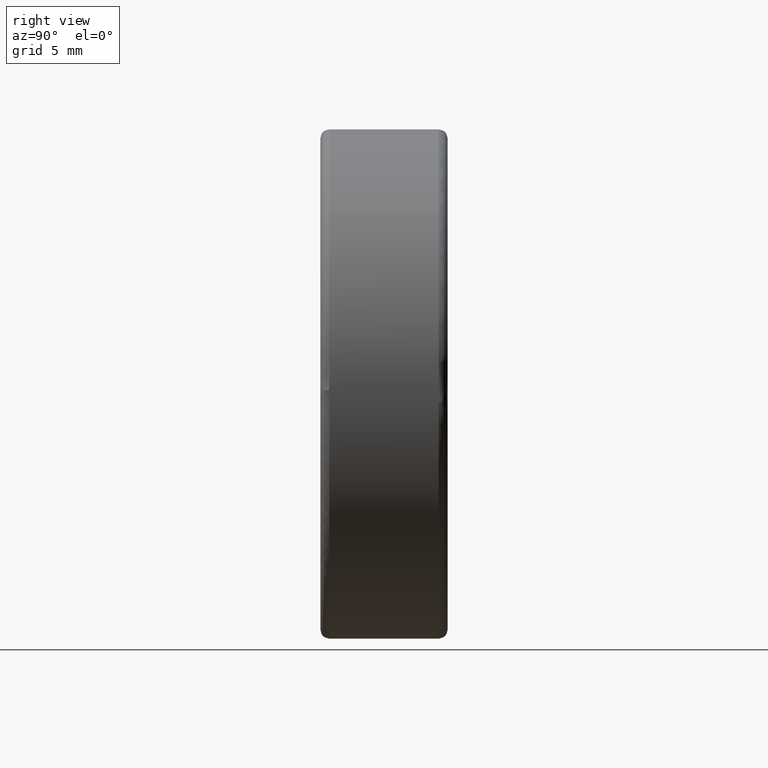
[diagram: clean part render]
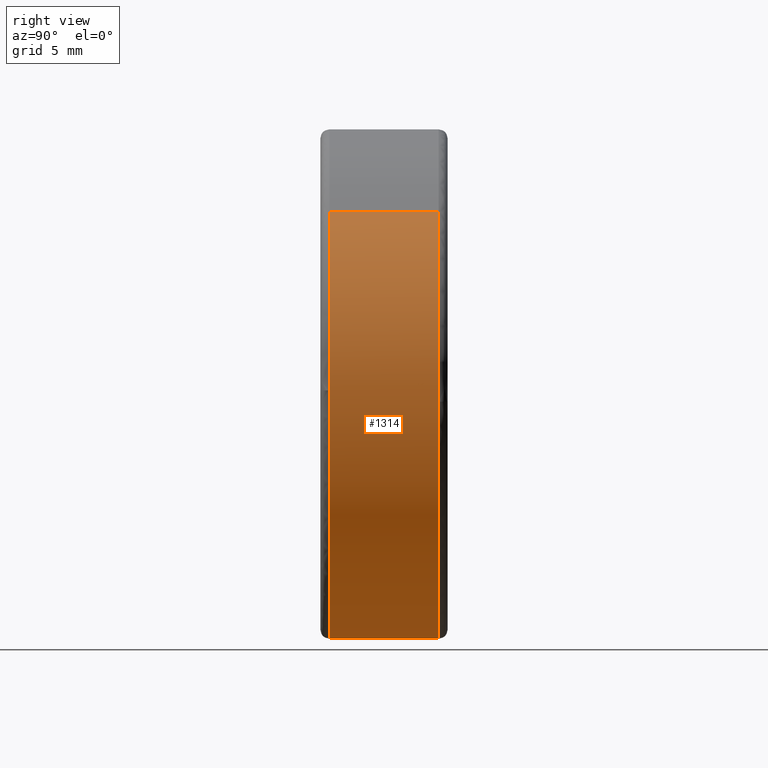
[diagram: same view with one face highlighted and labeled with its STEP entity id]
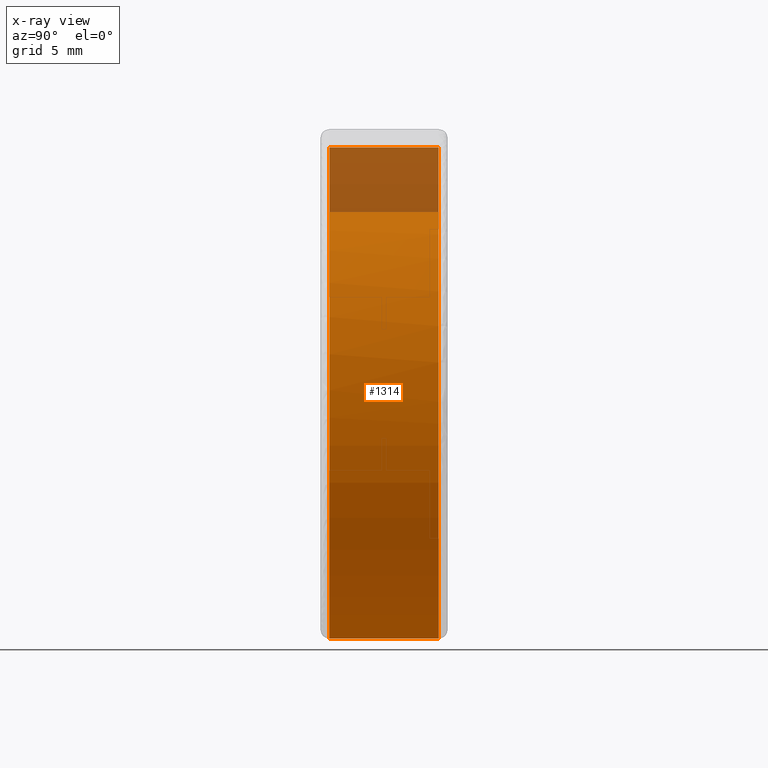
[diagram: x-ray of the same camera — body ghosted, the highlighted face saturated]
A machine part, right view. The second image highlights one B-rep face of the part: STEP entity #1314.
The next image is the same camera in x-ray: the body ghosted, the highlighted face saturated — about 13% of this face is hidden behind the body in this view.
In plain terms, the highlighted face is a freeform B-spline surface patch.
Its self-contained STEP definition (entity closure, byte-faithful):
#1144=CARTESIAN_POINT('',(-5.201551801718360,6.650000000191610,12.997840545799923));
#1145=CARTESIAN_POINT('',(-7.574137941418920,6.650000000191609,12.048365156699280));
#1146=CARTESIAN_POINT('',(-9.458262906619240,6.650000000191609,10.321882715341729));
#1147=CARTESIAN_POINT('',(-19.780145621960965,6.650000000191609,0.863619808722493));
#1148=CARTESIAN_POINT('',(-10.321882715341729,6.650000000191609,-9.458262906619240));
#1149=CARTESIAN_POINT('',(-0.863619808722493,6.650000000191609,-19.780145621960965));
#1150=CARTESIAN_POINT('',(9.458262906619240,6.650000000191609,-10.321882715341729));
#1151=CARTESIAN_POINT('',(19.780145621960965,6.650000000191609,-0.863619808722493));
#1152=CARTESIAN_POINT('',(10.321882715341729,6.650000000191609,9.458262906619240));
#1153=CARTESIAN_POINT('',(-5.201551801718360,0.346249999705311,12.997840545799923));
#1154=CARTESIAN_POINT('',(-7.574137941418920,0.346249999705311,12.048365156699280));
#1155=CARTESIAN_POINT('',(-9.458262906619240,0.346249999705311,10.321882715341729));
#1156=CARTESIAN_POINT('',(-19.780145621960965,0.346249999705311,0.863619808722493));
#1157=CARTESIAN_POINT('',(-10.321882715341729,0.346249999705311,-9.458262906619240));
#1158=CARTESIAN_POINT('',(-0.863619808722493,0.346249999705311,-19.780145621960965));
#1159=CARTESIAN_POINT('',(9.458262906619240,0.346249999705311,-10.321882715341729));
#1160=CARTESIAN_POINT('',(19.780145621960965,0.346249999705311,-0.863619808722493));
#1161=CARTESIAN_POINT('',(10.321882715341729,0.346249999705311,9.458262906619240));
#1169=(BOUNDED_SURFACE()B_SPLINE_SURFACE(2,1,((#1144,#1153),(#1145,#1154),(#1146,#1155),(#1147,#1156),(#1148,#1157),(#1149,#1158),(#1150,#1159),(#1151,#1160),(#1152,#1161)),.UNSPECIFIED.,.F.,.F.,.U.)B_SPLINE_SURFACE_WITH_KNOTS((3,2,2,2,3),(2,2),(0.0,5.567030278294397,28.762989771187719,51.958949264081042,75.154908756974336),(0.0,6.303750000486299),.UNSPECIFIED.)GEOMETRIC_REPRESENTATION_ITEM()RATIONAL_B_SPLINE_SURFACE(((0.893152553776853,0.893152553776853),(0.929705627484771,0.929705627484771),(1.0,1.0),(0.707106781186548,0.707106781186548),(1.0,1.0),(0.707106781186548,0.707106781186548),(1.0,1.0),(0.707106781186548,0.707106781186548),(1.0,1.0)))REPRESENTATION_ITEM('')SURFACE());
#1170=CARTESIAN_POINT('',(-5.201544316576030,0.499999999979195,12.997843541242920));
#1171=VERTEX_POINT('',#1170);
#1172=CARTESIAN_POINT('',(-13.995578649966189,0.499999999717171,0.351821336206924));
#1173=VERTEX_POINT('',#1172);
#1174=CARTESIAN_POINT('',(-5.201544316576030,0.499999999979195,12.997843541242920));
#1175=CARTESIAN_POINT('',(-13.763817857599783,0.499999999908226,9.571348589758784));
#1176=CARTESIAN_POINT('',(-13.995578649966189,0.499999999717171,0.351821336206924));
#1184=(BOUNDED_CURVE()B_SPLINE_CURVE(2,(#1174,#1175,#1176),.UNSPECIFIED.,.F.,.U.)B_SPLINE_CURVE_WITH_KNOTS((3,3),(0.563083108910150,0.745579891769803),.UNSPECIFIED.)CURVE()GEOMETRIC_REPRESENTATION_ITEM()RATIONAL_B_SPLINE_CURVE((0.889485075190697,0.783578322988915,0.989826157681565))REPRESENTATION_ITEM(''));
#1185=EDGE_CURVE('',#1171,#1173,#1184,.T.);
#1186=ORIENTED_EDGE('',*,*,#1185,.F.);
#1187=CARTESIAN_POINT('',(-5.201544378628663,6.500000000013052,12.997843516410160));
#1188=VERTEX_POINT('',#1187);
#1189=CARTESIAN_POINT('',(-5.201544378628663,6.500000000013052,12.997843516410160));
#1190=CARTESIAN_POINT('',(-5.201544316576030,0.499999999979195,12.997843541242920));
#1191=QUASI_UNIFORM_CURVE('',1,(#1189,#1190),.UNSPECIFIED.,.F.,.U.);
#1192=EDGE_CURVE('',#1188,#1171,#1191,.T.);
#1193=ORIENTED_EDGE('',*,*,#1192,.F.);
#1194=CARTESIAN_POINT('',(-13.998894618853329,6.500000000180037,0.175924558374211));
#1195=VERTEX_POINT('',#1194);
#1196=CARTESIAN_POINT('',(-5.201544378628664,6.500000000013052,12.997843516410164));
#1197=CARTESIAN_POINT('',(-13.881413428418456,6.500000000058290,9.524288537373931));
#1198=CARTESIAN_POINT('',(-13.998894618853333,6.500000000180037,0.175924558374211));
#1206=(BOUNDED_CURVE()B_SPLINE_CURVE(2,(#1196,#1197,#1198),.UNSPECIFIED.,.F.,.U.)B_SPLINE_CURVE_WITH_KNOTS((3,3),(0.563083109660825,0.747784295921545),.UNSPECIFIED.)CURVE()GEOMETRIC_REPRESENTATION_ITEM()RATIONAL_B_SPLINE_CURVE((0.889485074319432,0.782299061388040,0.994854295643590))REPRESENTATION_ITEM(''));
#1207=EDGE_CURVE('',#1188,#1195,#1206,.T.);
#1208=ORIENTED_EDGE('',*,*,#1207,.T.);
#1209=CARTESIAN_POINT('',(0.0,6.500000000000000,-14.0));
#1210=VERTEX_POINT('',#1209);
#1211=CARTESIAN_POINT('',(-13.998894618853329,6.500000000180037,0.175924558374211));
#1212=CARTESIAN_POINT('',(-14.000000000000005,6.500000000000000,0.087965751893737));
#1213=CARTESIAN_POINT('',(-14.0,6.500000000000000,-1.642359E-016));
#1214=CARTESIAN_POINT('',(-13.999999999999998,6.500000000000000,-13.999999999999998));
#1215=CARTESIAN_POINT('',(0.0,6.500000000000000,-14.0));
#1223=(BOUNDED_CURVE()B_SPLINE_CURVE(2,(#1211,#1212,#1213,#1214,#1215),.UNSPECIFIED.,.F.,.U.)B_SPLINE_CURVE_WITH_KNOTS((3,2,3),(0.747784295921545,0.750000000000000,1.0),.UNSPECIFIED.)CURVE()GEOMETRIC_REPRESENTATION_ITEM()RATIONAL_B_SPLINE_CURVE((0.994854295643591,0.997404141202093,1.0,0.707106781186547,1.0))REPRESENTATION_ITEM(''));
#1224=EDGE_CURVE('',#1195,#1210,#1223,.T.);
#1225=ORIENTED_EDGE('',*,*,#1224,.T.);
#1226=CARTESIAN_POINT('',(13.965919433765690,6.500000000179891,-0.976265522061362));
#1227=VERTEX_POINT('',#1226);
#1228=CARTESIAN_POINT('',(0.0,6.500000000000000,-14.0));
#1229=CARTESIAN_POINT('',(13.055515861722975,6.500000000000000,-14.000000000000005));
#1230=CARTESIAN_POINT('',(13.965919433765690,6.500000000179892,-0.976265522061362));
#1238=(BOUNDED_CURVE()B_SPLINE_CURVE(2,(#1228,#1229,#1230),.UNSPECIFIED.,.F.,.U.)B_SPLINE_CURVE_WITH_KNOTS((3,3),(0.0,0.237833686535007),.UNSPECIFIED.)CURVE()GEOMETRIC_REPRESENTATION_ITEM()RATIONAL_B_SPLINE_CURVE((1.0,0.721360504033968,0.972879876386797))REPRESENTATION_ITEM(''));
#1239=EDGE_CURVE('',#1210,#1227,#1238,.T.);
#1240=ORIENTED_EDGE('',*,*,#1239,.T.);
#1241=CARTESIAN_POINT('',(10.321883223462130,6.500000000000000,9.458262352103080));
#1242=VERTEX_POINT('',#1241);
#1243=CARTESIAN_POINT('',(13.965919433765690,6.500000000179892,-0.976265522061362));
#1244=CARTESIAN_POINT('',(14.000000000000002,6.499999999999999,-0.488727622251159));
#1245=CARTESIAN_POINT('',(14.0,6.500000000000000,-1.642359E-016));
#1246=CARTESIAN_POINT('',(14.000000000000005,6.500000000000000,5.444301380088920));
#1247=CARTESIAN_POINT('',(10.321883223462125,6.500000000000000,9.458262352103082));
#1255=(BOUNDED_CURVE()B_SPLINE_CURVE(2,(#1243,#1244,#1245,#1246,#1247),.UNSPECIFIED.,.F.,.U.)B_SPLINE_CURVE_WITH_KNOTS((3,2,3),(0.237833686535007,0.250000000000000,0.368415192864190),.UNSPECIFIED.)CURVE()GEOMETRIC_REPRESENTATION_ITEM()RATIONAL_B_SPLINE_CURVE((0.972879876386797,0.985746277152579,1.0,0.861267972022367,0.853959782840026))REPRESENTATION_ITEM(''));
#1256=EDGE_CURVE('',#1227,#1242,#1255,.T.);
#1257=ORIENTED_EDGE('',*,*,#1256,.T.);
#1258=CARTESIAN_POINT('',(10.321883229809581,0.500000000000006,9.458262345176046));
#1259=VERTEX_POINT('',#1258);
#1260=CARTESIAN_POINT('',(10.321883223462130,6.500000000000000,9.458262352103080));
#1261=CARTESIAN_POINT('',(10.321883229809581,0.500000000000006,9.458262345176046));
#1262=QUASI_UNIFORM_CURVE('',1,(#1260,#1261),.UNSPECIFIED.,.F.,.U.);
#1263=EDGE_CURVE('',#1242,#1259,#1262,.T.);
#1264=ORIENTED_EDGE('',*,*,#1263,.T.);
#1265=CARTESIAN_POINT('',(13.995578649966189,0.499999999717171,-0.351821336206922));
#1266=VERTEX_POINT('',#1265);
#1267=CARTESIAN_POINT('',(13.995578649966191,0.499999999717171,-0.351821336206922));
#1268=CARTESIAN_POINT('',(13.999999999999995,0.500000000000000,-0.175938449727512));
#1269=CARTESIAN_POINT('',(14.0,0.500000000000000,-1.642359E-016));
#1270=CARTESIAN_POINT('',(13.999999999999995,0.500000000000000,5.444301369272680));
#1271=CARTESIAN_POINT('',(10.321883229809579,0.500000000000006,9.458262345176046));
#1279=(BOUNDED_CURVE()B_SPLINE_CURVE(2,(#1267,#1268,#1269,#1270,#1271),.UNSPECIFIED.,.F.,.U.)B_SPLINE_CURVE_WITH_KNOTS((3,2,3),(0.245579891769803,0.250000000000000,0.368415192661571),.UNSPECIFIED.)CURVE()GEOMETRIC_REPRESENTATION_ITEM()RATIONAL_B_SPLINE_CURVE((0.989826157681565,0.994821521091815,1.0,0.861267972259750,0.853959782865036))REPRESENTATION_ITEM(''));
#1280=EDGE_CURVE('',#1266,#1259,#1279,.T.);
#1281=ORIENTED_EDGE('',*,*,#1280,.F.);
#1282=CARTESIAN_POINT('',(0.0,0.500000000000000,-14.0));
#1283=VERTEX_POINT('',#1282);
#1284=CARTESIAN_POINT('',(0.0,0.500000000000000,-14.0));
#1285=CARTESIAN_POINT('',(13.652490266528705,0.500000000000000,-14.0));
#1286=CARTESIAN_POINT('',(13.995578649966191,0.499999999717171,-0.351821336206922));
#1294=(BOUNDED_CURVE()B_SPLINE_CURVE(2,(#1284,#1285,#1286),.UNSPECIFIED.,.F.,.U.)B_SPLINE_CURVE_WITH_KNOTS((3,3),(0.0,0.245579891769803),.UNSPECIFIED.)CURVE()GEOMETRIC_REPRESENTATION_ITEM()RATIONAL_B_SPLINE_CURVE((1.0,0.712285260094733,0.989826157681565))REPRESENTATION_ITEM(''));
#1295=EDGE_CURVE('',#1283,#1266,#1294,.T.);
#1296=ORIENTED_EDGE('',*,*,#1295,.F.);
#1297=CARTESIAN_POINT('',(-13.995578649966195,0.499999999717171,0.351821336206924));
#1298=CARTESIAN_POINT('',(-13.999999999999995,0.500000000000000,0.175938449727513));
#1299=CARTESIAN_POINT('',(-14.0,0.500000000000000,-1.642359E-016));
#1300=CARTESIAN_POINT('',(-13.999999999999998,0.500000000000000,-13.999999999999998));
#1301=CARTESIAN_POINT('',(0.0,0.500000000000000,-14.0));
#1309=(BOUNDED_CURVE()B_SPLINE_CURVE(2,(#1297,#1298,#1299,#1300,#1301),.UNSPECIFIED.,.F.,.U.)B_SPLINE_CURVE_WITH_KNOTS((3,2,3),(0.745579891769803,0.750000000000000,1.0),.UNSPECIFIED.)CURVE()GEOMETRIC_REPRESENTATION_ITEM()RATIONAL_B_SPLINE_CURVE((0.989826157681565,0.994821521091815,1.0,0.707106781186547,1.0))REPRESENTATION_ITEM(''));
#1310=EDGE_CURVE('',#1173,#1283,#1309,.T.);
#1311=ORIENTED_EDGE('',*,*,#1310,.F.);
#1312=EDGE_LOOP('',(#1186,#1193,#1208,#1225,#1240,#1257,#1264,#1281,#1296,#1311));
#1313=FACE_OUTER_BOUND('',#1312,.T.);
#1314=ADVANCED_FACE('',(#1313),#1169,.T.);